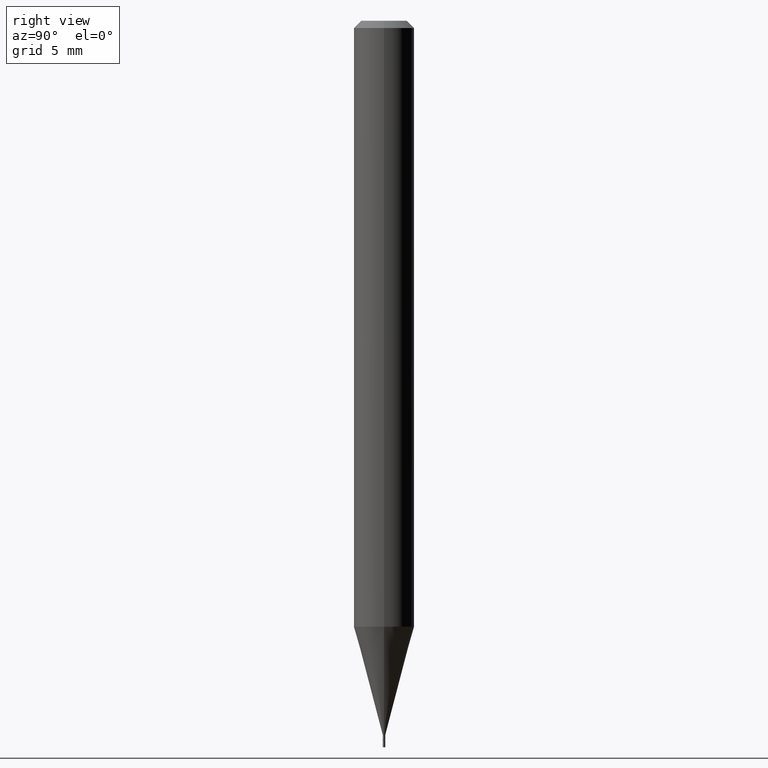
[diagram: clean part render]
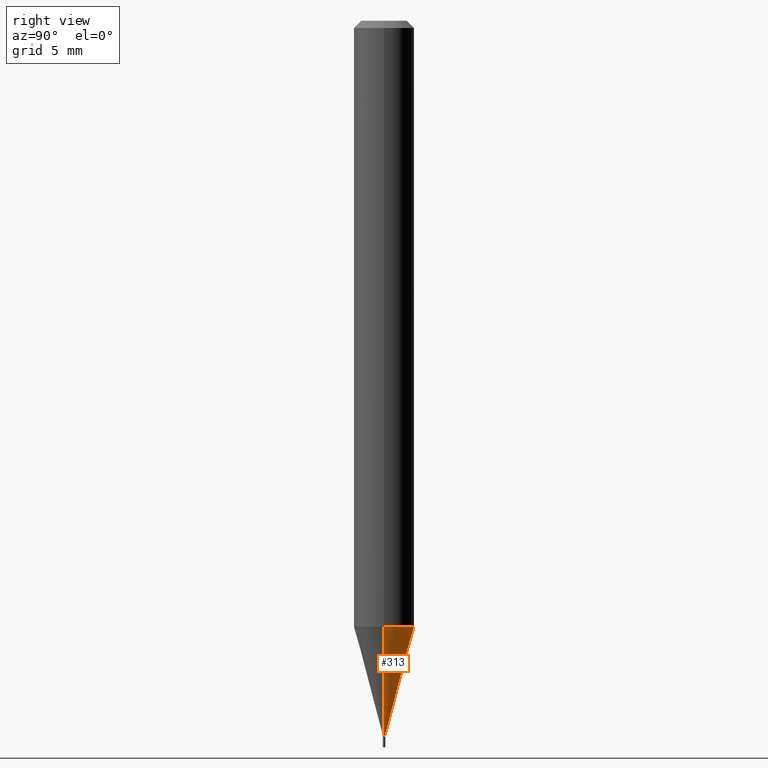
[diagram: same view with one face highlighted and labeled with its STEP entity id]
A machine part, right view. The second image highlights one B-rep face of the part: STEP entity #313.
In plain terms, the highlighted conical surface has half-angle 15 deg.
Its self-contained STEP definition (entity closure, byte-faithful):
#16 = EDGE_LOOP ( 'NONE', ( #47, #334, #399, #54 ) ) ;
#19 = DIRECTION ( 'NONE',  ( 0.2588190451025214611, 1.565188264969620982E-15, 0.9659258262890679791 ) ) ;
#28 = DIRECTION ( 'NONE',  ( -0.2588190451025214611, 5.211531920934550253E-15, 0.9659258262890679791 ) ) ;
#47 = ORIENTED_EDGE ( 'NONE', *, *, #259, .T. ) ;
#54 = ORIENTED_EDGE ( 'NONE', *, *, #232, .F. ) ;
#55 = CARTESIAN_POINT ( 'NONE',  ( 3.059469659142613603E-29, -4.368111829779168212E-15, -1.251076951545867955 ) ) ;
#64 = DIRECTION ( 'NONE',  ( -2.445468806185136597E-29, 3.491481338843145583E-15, 1.000000000000000000 ) ) ;
#91 = VERTEX_POINT ( 'NONE', #347 ) ;
#125 = CARTESIAN_POINT ( 'NONE',  ( 0.06250000000000000000, -4.804546997134559881E-15, -1.251076951545867955 ) ) ;
#126 = CARTESIAN_POINT ( 'NONE',  ( 3.607066489123076592E-29, -5.149934974793640632E-15, -1.475000000000000311 ) ) ;
#129 = LINE ( 'NONE', #349, #438 ) ;
#141 = VECTOR ( 'NONE', #19, 39.37007874015748143 ) ;
#157 = CONICAL_SURFACE ( 'NONE', #412, 0.002499999999999921989, 0.2617993877991501850 ) ;
#191 = AXIS2_PLACEMENT_3D ( 'NONE', #126, #64, #314 ) ;
#196 = DIRECTION ( 'NONE',  ( 1.000000000000000000, -6.982962677686270655E-15, 0.000000000000000000 ) ) ;
#198 = CIRCLE ( 'NONE', #395, 0.06250000000000000000 ) ;
#201 = LINE ( 'NONE', #344, #141 ) ;
#216 = CARTESIAN_POINT ( 'NONE',  ( 0.002499999999999921989, -5.167392381487856456E-15, -1.475000000000000311 ) ) ;
#221 = EDGE_CURVE ( 'NONE', #91, #300, #129, .T. ) ;
#227 = EDGE_CURVE ( 'NONE', #264, #300, #198, .T. ) ;
#232 = EDGE_CURVE ( 'NONE', #410, #264, #201, .T. ) ;
#259 = EDGE_CURVE ( 'NONE', #410, #91, #267, .T. ) ;
#264 = VERTEX_POINT ( 'NONE', #125 ) ;
#267 = CIRCLE ( 'NONE', #191, 0.002499999999999921989 ) ;
#294 = DIRECTION ( 'NONE',  ( -2.445468806185136597E-29, 3.491481338843145583E-15, 1.000000000000000000 ) ) ;
#300 = VERTEX_POINT ( 'NONE', #319 ) ;
#313 = ADVANCED_FACE ( 'NONE', ( #321 ), #157, .T. ) ;
#314 = DIRECTION ( 'NONE',  ( 1.000000000000000000, -6.982962677686356641E-15, 0.000000000000000000 ) ) ;
#319 = CARTESIAN_POINT ( 'NONE',  ( -0.06250000000000000000, -3.924022619929106385E-15, -1.251076951545867955 ) ) ;
#321 = FACE_OUTER_BOUND ( 'NONE', #16, .T. ) ;
#334 = ORIENTED_EDGE ( 'NONE', *, *, #221, .T. ) ;
#344 = CARTESIAN_POINT ( 'NONE',  ( 0.002499999999999921989, -5.167392381487856456E-15, -1.475000000000000311 ) ) ;
#347 = CARTESIAN_POINT ( 'NONE',  ( -0.002499999999999921989, -4.528097013164372840E-15, -1.475000000000000311 ) ) ;
#349 = CARTESIAN_POINT ( 'NONE',  ( -0.002499999999999921989, -5.132171406399639295E-15, -1.475000000000000311 ) ) ;
#357 = CARTESIAN_POINT ( 'NONE',  ( 3.607066489123076592E-29, -5.149934974793640632E-15, -1.475000000000000311 ) ) ;
#381 = DIRECTION ( 'NONE',  ( -2.445468806185136597E-29, 3.491481338843145583E-15, 1.000000000000000000 ) ) ;
#395 = AXIS2_PLACEMENT_3D ( 'NONE', #55, #381, #196 ) ;
#399 = ORIENTED_EDGE ( 'NONE', *, *, #227, .F. ) ;
#410 = VERTEX_POINT ( 'NONE', #216 ) ;
#412 = AXIS2_PLACEMENT_3D ( 'NONE', #357, #294, #422 ) ;
#422 = DIRECTION ( 'NONE',  ( 1.000000000000000000, -6.982962677686356641E-15, 0.000000000000000000 ) ) ;
#438 = VECTOR ( 'NONE', #28, 39.37007874015748143 ) ;